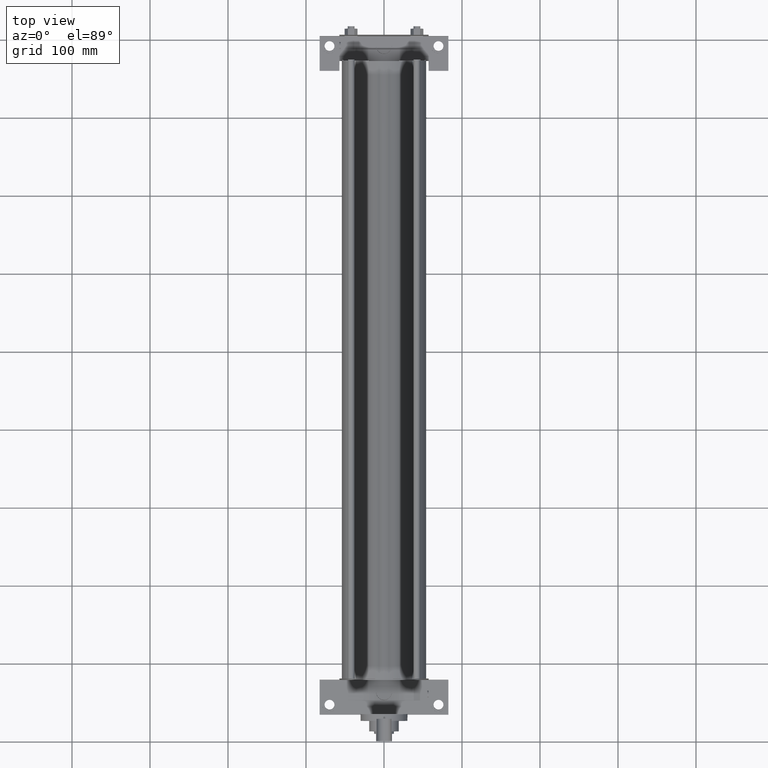
[diagram: clean part render]
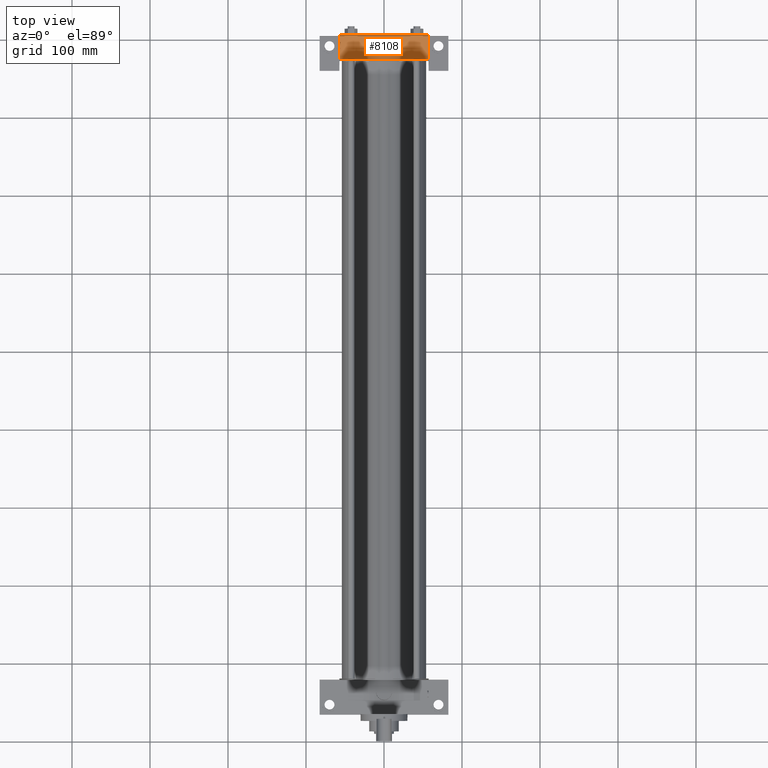
[diagram: same view with one face highlighted and labeled with its STEP entity id]
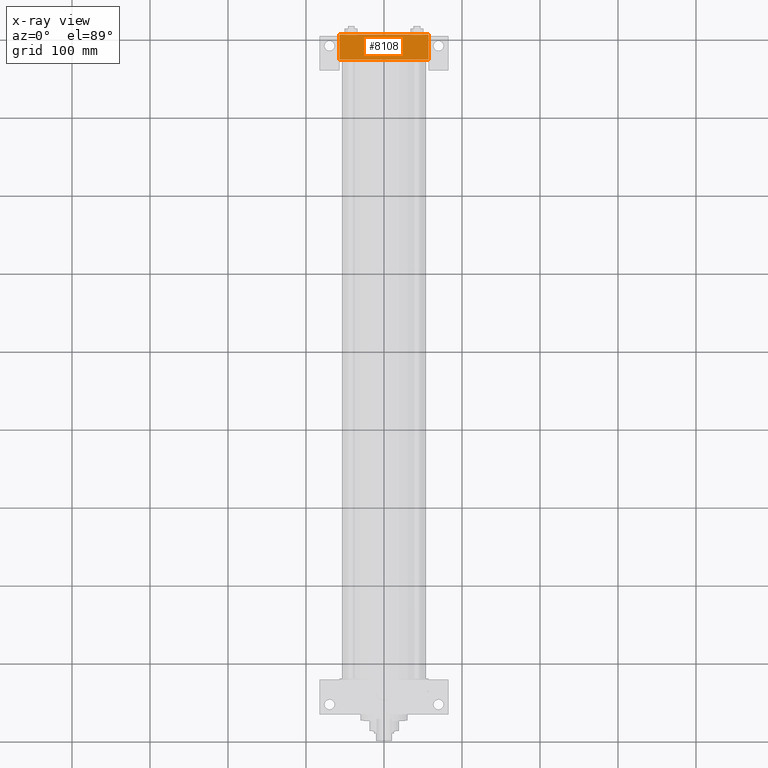
[diagram: x-ray of the same camera — body ghosted, the highlighted face saturated]
A machine part, top view. The second image highlights one B-rep face of the part: STEP entity #8108.
The next image is the same camera in x-ray: the body ghosted, the highlighted face saturated — about 0% of this face is hidden behind the body in this view.
In plain terms, the highlighted planar face has unit normal (0, 0, 1).
Its self-contained STEP definition (entity closure, byte-faithful):
#3283=EDGE_CURVE('',#3289,#3289,#3284,.T.);
#3284=CIRCLE('',#3285,9.921875000E+000);
#3285=AXIS2_PLACEMENT_3D('',#3286,#3287,#3288);
#3286=CARTESIAN_POINT('',(0.000000000E+000,8.905875000E+002,5.715000000E+001));
#3287=DIRECTION('',(0.0E+000,0.0E+000,-1.0E+000));
#3288=DIRECTION('',(-1.0E+000,0.0E+000,0.0E+000));
#3289=VERTEX_POINT('',#3290);
#3290=CARTESIAN_POINT('',(-9.921875000E+000,8.905875000E+002,5.715000000E+001));
#3755=VERTEX_POINT('',#3756);
#3756=CARTESIAN_POINT('',(-5.715000000E+001,9.048750000E+002,5.715000000E+001));
#3757=EDGE_CURVE('',#3762,#3755,#3758,.T.);
#3758=LINE('',#3759,#3760);
#3759=CARTESIAN_POINT('',(5.715000000E+001,9.048750000E+002,5.715000000E+001));
#3760=VECTOR('',#3761,1.0E+000);
#3761=DIRECTION('',(-1.0E+000,0.0E+000,0.0E+000));
#3762=VERTEX_POINT('',#3763);
#3763=CARTESIAN_POINT('',(5.715000000E+001,9.048750000E+002,5.715000000E+001));
#3774=FACE_OUTER_BOUND('',#3776,.T.);
#3775=FACE_BOUND('',#3777,.T.);
#3776=EDGE_LOOP('',(#3778));
#3777=EDGE_LOOP('',(#3779,#3780,#3781,#3782));
#3778=ORIENTED_EDGE('',*,*,#3283,.T.);
#3779=ORIENTED_EDGE('',*,*,#3783,.T.);
#3780=ORIENTED_EDGE('',*,*,#3790,.F.);
#3781=ORIENTED_EDGE('',*,*,#3797,.F.);
#3782=ORIENTED_EDGE('',*,*,#3757,.T.);
#3783=EDGE_CURVE('',#3755,#3788,#3784,.T.);
#3784=LINE('',#3785,#3786);
#3785=CARTESIAN_POINT('',(-5.715000000E+001,9.048750000E+002,5.715000000E+001));
#3786=VECTOR('',#3787,1.0E+000);
#3787=DIRECTION('',(0.0E+000,-1.0E+000,0.0E+000));
#3788=VERTEX_POINT('',#3789);
#3789=CARTESIAN_POINT('',(-5.715000000E+001,8.731250000E+002,5.715000000E+001));
#3790=EDGE_CURVE('',#3795,#3788,#3791,.T.);
#3791=LINE('',#3792,#3793);
#3792=CARTESIAN_POINT('',(5.715000000E+001,8.731250000E+002,5.715000000E+001));
#3793=VECTOR('',#3794,1.0E+000);
#3794=DIRECTION('',(-1.0E+000,0.0E+000,0.0E+000));
#3795=VERTEX_POINT('',#3796);
#3796=CARTESIAN_POINT('',(5.715000000E+001,8.731250000E+002,5.715000000E+001));
#3797=EDGE_CURVE('',#3762,#3795,#3798,.T.);
#3798=LINE('',#3799,#3800);
#3799=CARTESIAN_POINT('',(5.715000000E+001,9.048750000E+002,5.715000000E+001));
#3800=VECTOR('',#3801,1.0E+000);
#3801=DIRECTION('',(0.0E+000,-1.0E+000,0.0E+000));
#3802=PLANE('',#3803);
#3803=AXIS2_PLACEMENT_3D('',#3804,#3805,#3806);
#3804=CARTESIAN_POINT('',(5.715000000E+001,9.048750000E+002,5.715000000E+001));
#3805=DIRECTION('',(0.0E+000,0.0E+000,1.0E+000));
#3806=DIRECTION('',(1.0E+000,0.0E+000,0.0E+000));
#8108=ADVANCED_FACE('',(#3774,#3775),#3802,.T.);